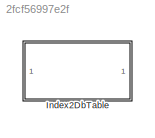
MODEL slx_2fcf56997e2f
KIND library
CONFIG AbsTol = auto
CONFIG EnableMultiTasking = off
CONFIG FixedStep = auto
CONFIG MaxStep = auto
CONFIG MinStep = auto
CONFIG RelTol = 1e-3
CONFIG SampleTimeConstraint = Unconstrained
CONFIG SolverName = VariableStepAuto
CONFIG StartTime = 0.0
CONFIG StopTime = 10.0
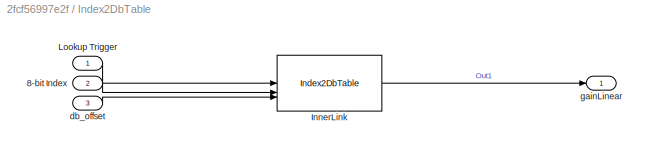
BLOCK [SubSystem] Index2DbTable
BLOCK [Inport] Index2DbTable/8-bit Index
  Port = 2
BLOCK [Reference] Index2DbTable/InnerLink  REF=Index2DbTableBtc/Index2DbTable
  SourceBlock = Index2DbTableBtc/Index2DbTable
  SourceProductName = Bose Blocklib
  SourceType = Blocklib Index2DbTable
BLOCK [Inport] Index2DbTable/Lookup Trigger
BLOCK [Inport] Index2DbTable/db_offset
  Port = 3
BLOCK [Outport] Index2DbTable/gainLinear
LINE Index2DbTable/8-bit Index:1 -> Index2DbTable/InnerLink:2
LINE Index2DbTable/InnerLink:1 -> Index2DbTable/gainLinear:1
LINE Index2DbTable/Lookup Trigger:1 -> Index2DbTable/InnerLink:1
LINE Index2DbTable/db_offset:1 -> Index2DbTable/InnerLink:3
